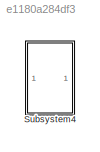
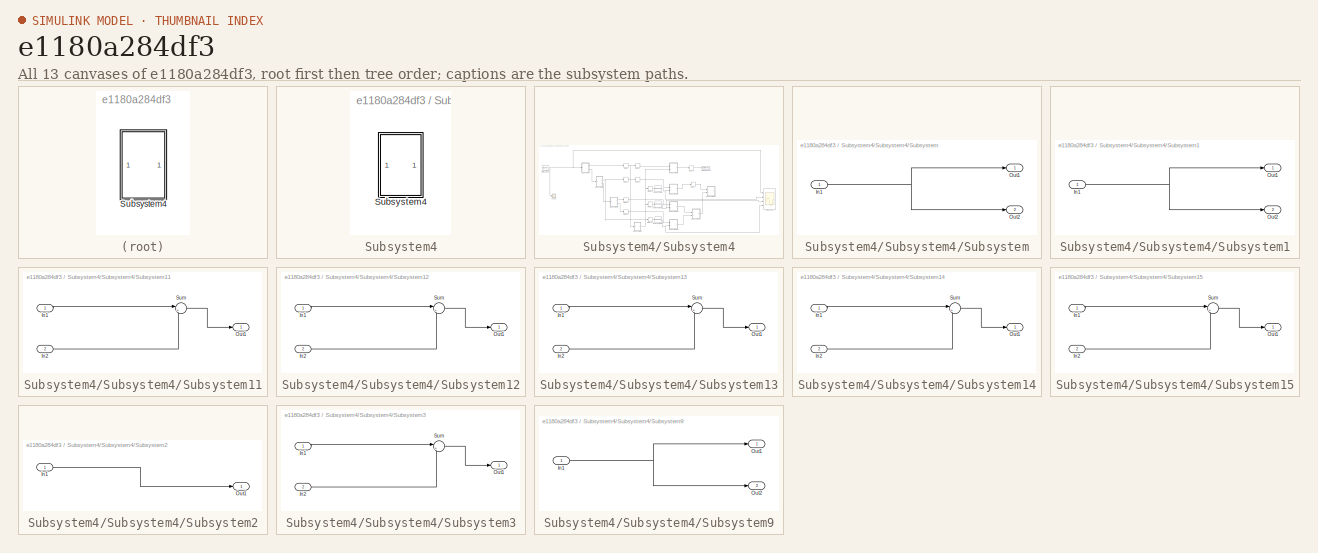
[diagram: thumbnail index - all 13 canvases of the model, root first then tree order]
MODEL slx_e1180a284df3
KIND model
CONFIG AbsTol = auto
CONFIG FixedStep = auto
CONFIG MaxStep = auto
CONFIG MinStep = auto
CONFIG RelTol = 1e-3
CONFIG SampleTimeConstraint = Unconstrained
CONFIG Solver = VariableStepAuto
CONFIG SolverMode = Auto
CONFIG SolverName = VariableStepAuto
CONFIG StartTime = 0.0
CONFIG StopTime = 4000
BLOCK [SubSystem] Subsystem4
  Ports = []
  RequestExecContextInheritance = off
  Variant = off
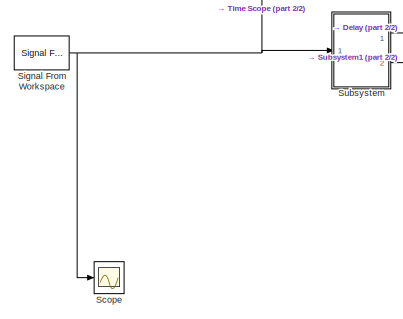
[diagram: Subsystem4/Subsystem4 - part 1/2, middle left region]
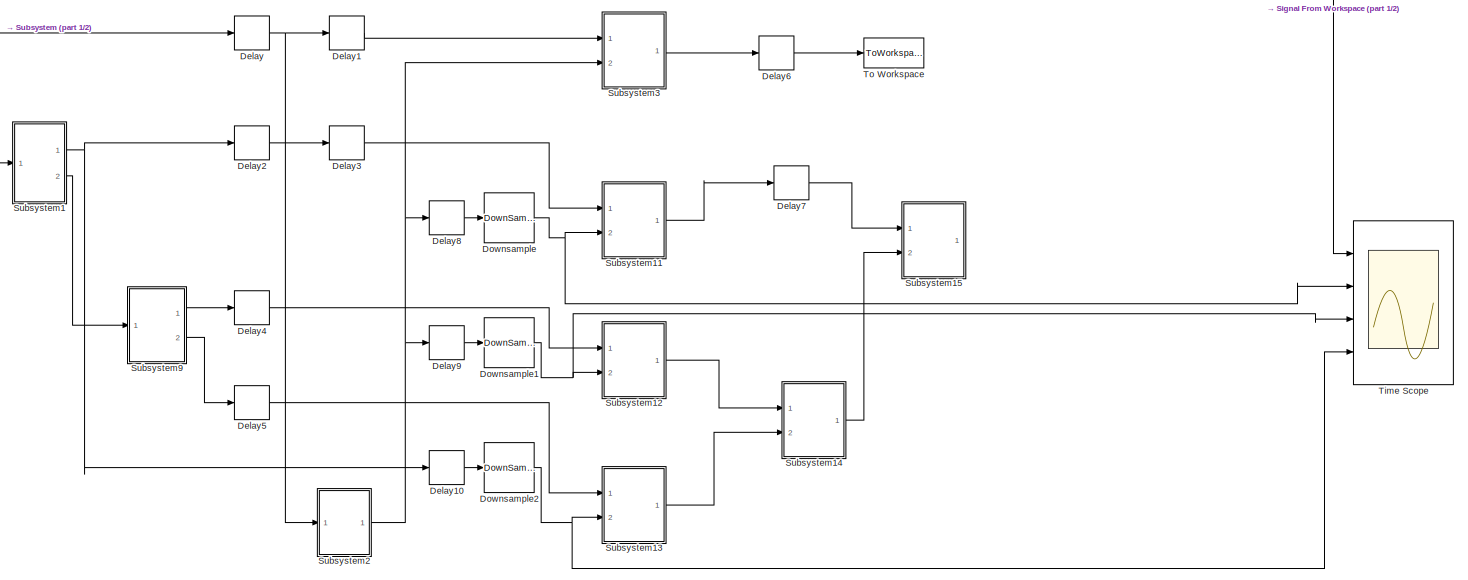
[diagram: Subsystem4/Subsystem4 - part 2/2, most of the canvas]
BLOCK [SubSystem] Subsystem4/Subsystem4
  Ports = []
  RequestExecContextInheritance = off
  Variant = off
BLOCK [Delay] Subsystem4/Subsystem4/Delay
  DelayLength = 24
  InitialCondition = 0
  InputPortMap = u0
  InputProcessing = Columns as channels (frame based)
  Ports = [1, 1]
BLOCK [Delay] Subsystem4/Subsystem4/Delay1
  DelayLength = 16
  InitialCondition = 0
  InputPortMap = u0
  InputProcessing = Columns as channels (frame based)
  Ports = [1, 1]
BLOCK [Delay] Subsystem4/Subsystem4/Delay10
  DelayLength = 1
  InitialCondition = 0
  InputPortMap = u0
  Ports = [1, 1]
BLOCK [Delay] Subsystem4/Subsystem4/Delay2
  DelayLength = 8
  InitialCondition = 0
  InputPortMap = u0
  InputProcessing = Columns as channels (frame based)
  Ports = [1, 1]
BLOCK [Delay] Subsystem4/Subsystem4/Delay3
  DelayLength = 8
  InitialCondition = 0
  InputPortMap = u0
  Ports = [1, 1]
BLOCK [Delay] Subsystem4/Subsystem4/Delay4
  DelayLength = 4
  InitialCondition = 0
  InputPortMap = u0
  Ports = [1, 1]
BLOCK [Delay] Subsystem4/Subsystem4/Delay5
  DelayLength = 4
  InitialCondition = 0
  InputPortMap = u0
  Ports = [1, 1]
BLOCK [Delay] Subsystem4/Subsystem4/Delay6
  DelayLength = 24
  InitialCondition = 0
  InputPortMap = u0
  InputProcessing = Columns as channels (frame based)
  Ports = [1, 1]
BLOCK [Delay] Subsystem4/Subsystem4/Delay7
  DelayLength = 8
  InitialCondition = 0
  InputPortMap = u0
  InputProcessing = Columns as channels (frame based)
  Ports = [1, 1]
BLOCK [Delay] Subsystem4/Subsystem4/Delay8
  DelayLength = 1
  InitialCondition = 0
  InputPortMap = u0
  Ports = [1, 1]
BLOCK [Delay] Subsystem4/Subsystem4/Delay9
  DelayLength = 1
  InitialCondition = 0
  InputPortMap = u0
  Ports = [1, 1]
BLOCK [DownSample] Subsystem4/Subsystem4/Downsample
  RateOptions = Allow multirate processing
  ic = -1
BLOCK [DownSample] Subsystem4/Subsystem4/Downsample1
  N = 4
  RateOptions = Allow multirate processing
  ic = -1
BLOCK [DownSample] Subsystem4/Subsystem4/Downsample2
  N = 8
  RateOptions = Allow multirate processing
  ic = -1
  phase = 1
BLOCK [Scope] Subsystem4/Subsystem4/Scope
  Ports = [1]
  ScopeSpecificationString = Simulink.scopes.TimeScopeBlockCfg('CurrentConfiguration', extmgr.ConfigurationSet(extmgr.Configuration('Core','General UI',true),extmgr.Configuration('Core','Source UI',true),extmgr.Configuration('Sources','WiredSimulink',true,'DataLoggingLimitDataPoints',true,'DataLoggingSaveFormat','Array','DataLoggingDecimation','1','DataLoggingDecimateData',true),extmgr.Configuration('Visuals','Time Domain',tr...<+1493ch>
BLOCK [Reference] Subsystem4/Subsystem4/Signal From Workspace  REF=dspsrcs4/Signal From
Workspace
  Ports = [0, 1]
  SourceBlock = dspsrcs4/Signal From\nWorkspace
  SourceType = Signal From Workspace
BLOCK [SubSystem] Subsystem4/Subsystem4/Subsystem
  Ports = [1, 2]
  RequestExecContextInheritance = off
  Variant = off
BLOCK [Inport] Subsystem4/Subsystem4/Subsystem/In1
  IconDisplay = Port number
BLOCK [Outport] Subsystem4/Subsystem4/Subsystem/Out1
  IconDisplay = Port number
BLOCK [Outport] Subsystem4/Subsystem4/Subsystem/Out2
  IconDisplay = Port number
  Port = 2
BLOCK [SubSystem] Subsystem4/Subsystem4/Subsystem1
  Ports = [1, 2]
  RequestExecContextInheritance = off
  Variant = off
BLOCK [Inport] Subsystem4/Subsystem4/Subsystem1/In1
  IconDisplay = Port number
  VarSizeSig = No
BLOCK [Outport] Subsystem4/Subsystem4/Subsystem1/Out1
  IconDisplay = Port number
BLOCK [Outport] Subsystem4/Subsystem4/Subsystem1/Out2
  IconDisplay = Port number
  Port = 2
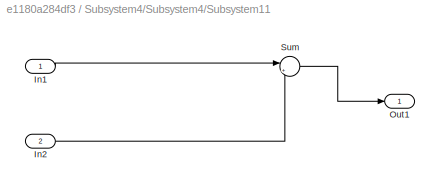
BLOCK [SubSystem] Subsystem4/Subsystem4/Subsystem11
  Ports = [2, 1]
  RequestExecContextInheritance = off
  Variant = off
BLOCK [Inport] Subsystem4/Subsystem4/Subsystem11/In1
  IconDisplay = Port number
BLOCK [Inport] Subsystem4/Subsystem4/Subsystem11/In2
  IconDisplay = Port number
  Port = 2
BLOCK [Outport] Subsystem4/Subsystem4/Subsystem11/Out1
  IconDisplay = Port number
BLOCK [Sum] Subsystem4/Subsystem4/Subsystem11/Sum
  IconShape = round
  InputSameDT = off
  Inputs = |++
  OutDataTypeStr = Inherit: Inherit via internal rule
  Ports = [2, 1]
  SaturateOnIntegerOverflow = off
BLOCK [SubSystem] Subsystem4/Subsystem4/Subsystem12
  Ports = [2, 1]
  RequestExecContextInheritance = off
  Variant = off
BLOCK [Inport] Subsystem4/Subsystem4/Subsystem12/In1
  IconDisplay = Port number
BLOCK [Inport] Subsystem4/Subsystem4/Subsystem12/In2
  IconDisplay = Port number
  Port = 2
BLOCK [Outport] Subsystem4/Subsystem4/Subsystem12/Out1
  IconDisplay = Port number
BLOCK [Sum] Subsystem4/Subsystem4/Subsystem12/Sum
  IconShape = round
  InputSameDT = off
  Inputs = |++
  OutDataTypeStr = Inherit: Inherit via internal rule
  Ports = [2, 1]
  SaturateOnIntegerOverflow = off
BLOCK [SubSystem] Subsystem4/Subsystem4/Subsystem13
  Ports = [2, 1]
  RequestExecContextInheritance = off
  Variant = off
BLOCK [Inport] Subsystem4/Subsystem4/Subsystem13/In1
  IconDisplay = Port number
BLOCK [Inport] Subsystem4/Subsystem4/Subsystem13/In2
  IconDisplay = Port number
  Port = 2
BLOCK [Outport] Subsystem4/Subsystem4/Subsystem13/Out1
  IconDisplay = Port number
BLOCK [Sum] Subsystem4/Subsystem4/Subsystem13/Sum
  IconShape = round
  InputSameDT = off
  Inputs = |++
  OutDataTypeStr = Inherit: Inherit via internal rule
  Ports = [2, 1]
  SaturateOnIntegerOverflow = off
BLOCK [SubSystem] Subsystem4/Subsystem4/Subsystem14
  Ports = [2, 1]
  RequestExecContextInheritance = off
  Variant = off
BLOCK [Inport] Subsystem4/Subsystem4/Subsystem14/In1
  IconDisplay = Port number
BLOCK [Inport] Subsystem4/Subsystem4/Subsystem14/In2
  IconDisplay = Port number
  Port = 2
BLOCK [Outport] Subsystem4/Subsystem4/Subsystem14/Out1
  IconDisplay = Port number
BLOCK [Sum] Subsystem4/Subsystem4/Subsystem14/Sum
  IconShape = round
  InputSameDT = off
  Inputs = |++
  OutDataTypeStr = Inherit: Inherit via internal rule
  Ports = [2, 1]
  SaturateOnIntegerOverflow = off
BLOCK [SubSystem] Subsystem4/Subsystem4/Subsystem15
  Ports = [2, 1]
  RequestExecContextInheritance = off
  Variant = off
BLOCK [Inport] Subsystem4/Subsystem4/Subsystem15/In1
  IconDisplay = Port number
BLOCK [Inport] Subsystem4/Subsystem4/Subsystem15/In2
  IconDisplay = Port number
  Port = 2
BLOCK [Outport] Subsystem4/Subsystem4/Subsystem15/Out1
  IconDisplay = Port number
BLOCK [Sum] Subsystem4/Subsystem4/Subsystem15/Sum
  IconShape = round
  InputSameDT = off
  Inputs = |++
  OutDataTypeStr = Inherit: Inherit via internal rule
  Ports = [2, 1]
  SaturateOnIntegerOverflow = off
BLOCK [SubSystem] Subsystem4/Subsystem4/Subsystem2
  Ports = [1, 1]
  RequestExecContextInheritance = off
  Variant = off
BLOCK [Inport] Subsystem4/Subsystem4/Subsystem2/In1
  IconDisplay = Port number
BLOCK [Outport] Subsystem4/Subsystem4/Subsystem2/Out1
  IconDisplay = Port number
BLOCK [SubSystem] Subsystem4/Subsystem4/Subsystem3
  Ports = [2, 1]
  RequestExecContextInheritance = off
  Variant = off
BLOCK [Inport] Subsystem4/Subsystem4/Subsystem3/In1
  IconDisplay = Port number
BLOCK [Inport] Subsystem4/Subsystem4/Subsystem3/In2
  IconDisplay = Port number
  Port = 2
BLOCK [Outport] Subsystem4/Subsystem4/Subsystem3/Out1
  IconDisplay = Port number
BLOCK [Sum] Subsystem4/Subsystem4/Subsystem3/Sum
  IconShape = round
  InputSameDT = off
  Inputs = |++
  OutDataTypeStr = Inherit: Inherit via internal rule
  Ports = [2, 1]
  SaturateOnIntegerOverflow = off
BLOCK [SubSystem] Subsystem4/Subsystem4/Subsystem9
  Ports = [1, 2]
  RequestExecContextInheritance = off
  Variant = off
BLOCK [Inport] Subsystem4/Subsystem4/Subsystem9/In1
  IconDisplay = Port number
BLOCK [Outport] Subsystem4/Subsystem4/Subsystem9/Out1
  IconDisplay = Port number
BLOCK [Outport] Subsystem4/Subsystem4/Subsystem9/Out2
  IconDisplay = Port number
  Port = 2
BLOCK [Scope] Subsystem4/Subsystem4/Time Scope
  DefaultConfigurationName = spbscopes.TimeScopeBlockCfg
  NumInputPorts = 4
  Ports = [4]
  ScopeSpecificationString = spbscopes.TimeScopeBlockCfg('CurrentConfiguration', extmgr.ConfigurationSet(extmgr.Configuration('Core','General UI',true),extmgr.Configuration('Core','Source UI',true),extmgr.Configuration('Sources','WiredSimulink',true,'DataLoggingVariableName','ScopeData1','DataLoggingLimitDataPoints',true,'DataLoggingSaveFormat','Array','DataLoggingDecimation','1','DataLoggingDecimateData',true),extmgr.Configu...<+3574ch>
  UserDataPersistent = on
BLOCK [ToWorkspace] Subsystem4/Subsystem4/To Workspace
  FixptAsFi = on
  MaxDataPoints = inf
  Ports = [1]
  SampleTime = -1
  Save2DSignal = 3-D array (concatenate along third dimension)
  SaveFormat = Timeseries
  VariableName = simout
LINE Subsystem4/Subsystem4/Delay10:1 -> Subsystem4/Subsystem4/Downsample2:1
LINE Subsystem4/Subsystem4/Delay1:1 -> Subsystem4/Subsystem4/Subsystem3:1
LINE Subsystem4/Subsystem4/Delay2:1 -> Subsystem4/Subsystem4/Delay3:1
LINE Subsystem4/Subsystem4/Delay3:1 -> Subsystem4/Subsystem4/Subsystem11:1
LINE Subsystem4/Subsystem4/Delay4:1 -> Subsystem4/Subsystem4/Subsystem12:1
LINE Subsystem4/Subsystem4/Delay5:1 -> Subsystem4/Subsystem4/Subsystem13:1
LINE Subsystem4/Subsystem4/Delay6:1 -> Subsystem4/Subsystem4/To Workspace:1
LINE Subsystem4/Subsystem4/Delay7:1 -> Subsystem4/Subsystem4/Subsystem15:1
LINE Subsystem4/Subsystem4/Delay8:1 -> Subsystem4/Subsystem4/Downsample:1
LINE Subsystem4/Subsystem4/Delay9:1 -> Subsystem4/Subsystem4/Downsample1:1
NET Subsystem4/Subsystem4/Delay:1 -> Subsystem4/Subsystem4/Delay1:1, Subsystem4/Subsystem4/Subsystem2:1
NET Subsystem4/Subsystem4/Downsample1:1 -> Subsystem4/Subsystem4/Subsystem12:2, Subsystem4/Subsystem4/Time Scope:3
NET Subsystem4/Subsystem4/Downsample2:1 -> Subsystem4/Subsystem4/Subsystem13:2, Subsystem4/Subsystem4/Time Scope:4
NET Subsystem4/Subsystem4/Downsample:1 -> Subsystem4/Subsystem4/Subsystem11:2, Subsystem4/Subsystem4/Time Scope:2
NET Subsystem4/Subsystem4/Signal From Workspace:1 -> Subsystem4/Subsystem4/Scope:1, Subsystem4/Subsystem4/Subsystem:1, Subsystem4/Subsystem4/Time Scope:1
NET Subsystem4/Subsystem4/Subsystem/In1:1 -> Subsystem4/Subsystem4/Subsystem/Out1:1, Subsystem4/Subsystem4/Subsystem/Out2:1
NET Subsystem4/Subsystem4/Subsystem1/In1:1 -> Subsystem4/Subsystem4/Subsystem1/Out1:1, Subsystem4/Subsystem4/Subsystem1/Out2:1
LINE Subsystem4/Subsystem4/Subsystem11/In1:1 -> Subsystem4/Subsystem4/Subsystem11/Sum:1
LINE Subsystem4/Subsystem4/Subsystem11/In2:1 -> Subsystem4/Subsystem4/Subsystem11/Sum:2
LINE Subsystem4/Subsystem4/Subsystem11/Sum:1 -> Subsystem4/Subsystem4/Subsystem11/Out1:1
LINE Subsystem4/Subsystem4/Subsystem11:1 -> Subsystem4/Subsystem4/Delay7:1
LINE Subsystem4/Subsystem4/Subsystem12/In1:1 -> Subsystem4/Subsystem4/Subsystem12/Sum:1
LINE Subsystem4/Subsystem4/Subsystem12/In2:1 -> Subsystem4/Subsystem4/Subsystem12/Sum:2
LINE Subsystem4/Subsystem4/Subsystem12/Sum:1 -> Subsystem4/Subsystem4/Subsystem12/Out1:1
LINE Subsystem4/Subsystem4/Subsystem12:1 -> Subsystem4/Subsystem4/Subsystem14:1
LINE Subsystem4/Subsystem4/Subsystem13/In1:1 -> Subsystem4/Subsystem4/Subsystem13/Sum:1
LINE Subsystem4/Subsystem4/Subsystem13/In2:1 -> Subsystem4/Subsystem4/Subsystem13/Sum:2
LINE Subsystem4/Subsystem4/Subsystem13/Sum:1 -> Subsystem4/Subsystem4/Subsystem13/Out1:1
LINE Subsystem4/Subsystem4/Subsystem13:1 -> Subsystem4/Subsystem4/Subsystem14:2
LINE Subsystem4/Subsystem4/Subsystem14/In1:1 -> Subsystem4/Subsystem4/Subsystem14/Sum:1
LINE Subsystem4/Subsystem4/Subsystem14/In2:1 -> Subsystem4/Subsystem4/Subsystem14/Sum:2
LINE Subsystem4/Subsystem4/Subsystem14/Sum:1 -> Subsystem4/Subsystem4/Subsystem14/Out1:1
LINE Subsystem4/Subsystem4/Subsystem14:1 -> Subsystem4/Subsystem4/Subsystem15:2
LINE Subsystem4/Subsystem4/Subsystem15/In1:1 -> Subsystem4/Subsystem4/Subsystem15/Sum:1
LINE Subsystem4/Subsystem4/Subsystem15/In2:1 -> Subsystem4/Subsystem4/Subsystem15/Sum:2
LINE Subsystem4/Subsystem4/Subsystem15/Sum:1 -> Subsystem4/Subsystem4/Subsystem15/Out1:1
NET Subsystem4/Subsystem4/Subsystem1:1 -> Subsystem4/Subsystem4/Delay10:1, Subsystem4/Subsystem4/Delay2:1
LINE Subsystem4/Subsystem4/Subsystem1:2 -> Subsystem4/Subsystem4/Subsystem9:1
LINE Subsystem4/Subsystem4/Subsystem2/In1:1 -> Subsystem4/Subsystem4/Subsystem2/Out1:1
NET Subsystem4/Subsystem4/Subsystem2:1 -> Subsystem4/Subsystem4/Delay8:1, Subsystem4/Subsystem4/Delay9:1, Subsystem4/Subsystem4/Subsystem3:2
LINE Subsystem4/Subsystem4/Subsystem3/In1:1 -> Subsystem4/Subsystem4/Subsystem3/Sum:1
LINE Subsystem4/Subsystem4/Subsystem3/In2:1 -> Subsystem4/Subsystem4/Subsystem3/Sum:2
LINE Subsystem4/Subsystem4/Subsystem3/Sum:1 -> Subsystem4/Subsystem4/Subsystem3/Out1:1
LINE Subsystem4/Subsystem4/Subsystem3:1 -> Subsystem4/Subsystem4/Delay6:1
NET Subsystem4/Subsystem4/Subsystem9/In1:1 -> Subsystem4/Subsystem4/Subsystem9/Out1:1, Subsystem4/Subsystem4/Subsystem9/Out2:1
LINE Subsystem4/Subsystem4/Subsystem9:1 -> Subsystem4/Subsystem4/Delay4:1
LINE Subsystem4/Subsystem4/Subsystem9:2 -> Subsystem4/Subsystem4/Delay5:1
LINE Subsystem4/Subsystem4/Subsystem:1 -> Subsystem4/Subsystem4/Delay:1
LINE Subsystem4/Subsystem4/Subsystem:2 -> Subsystem4/Subsystem4/Subsystem1:1
note: NET lines group one-source signal fan-out (src -> all destinations, sorted); 1:1 wires keep LINE
